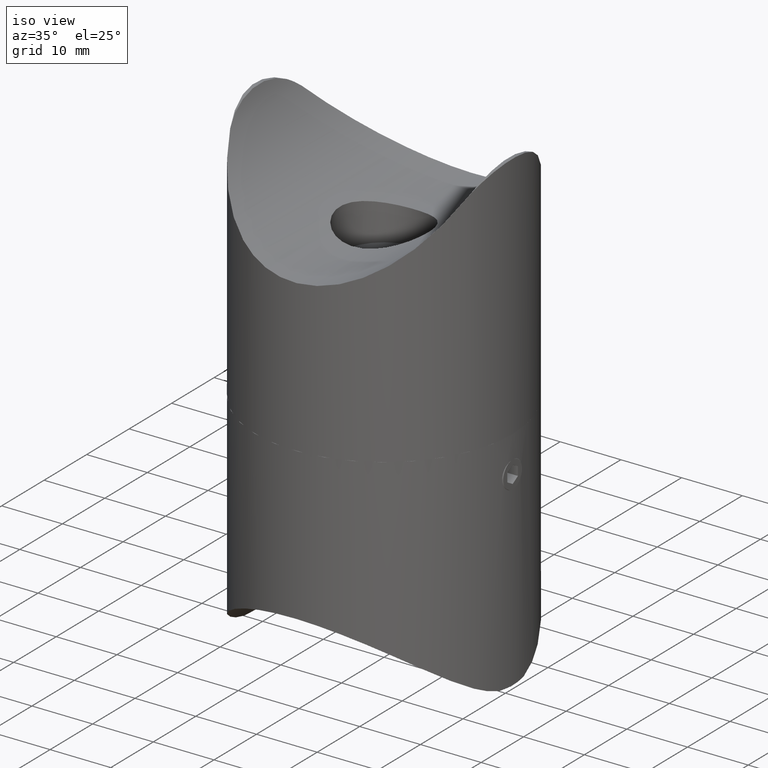
[diagram: clean part render]
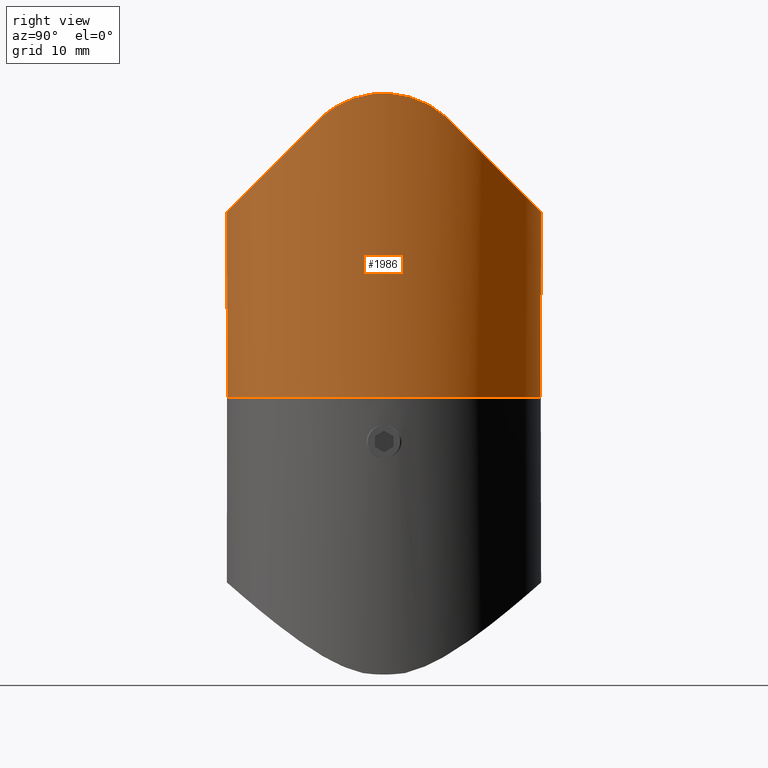
[diagram: tour spotlight — one face highlighted and labeled with its STEP entity id]
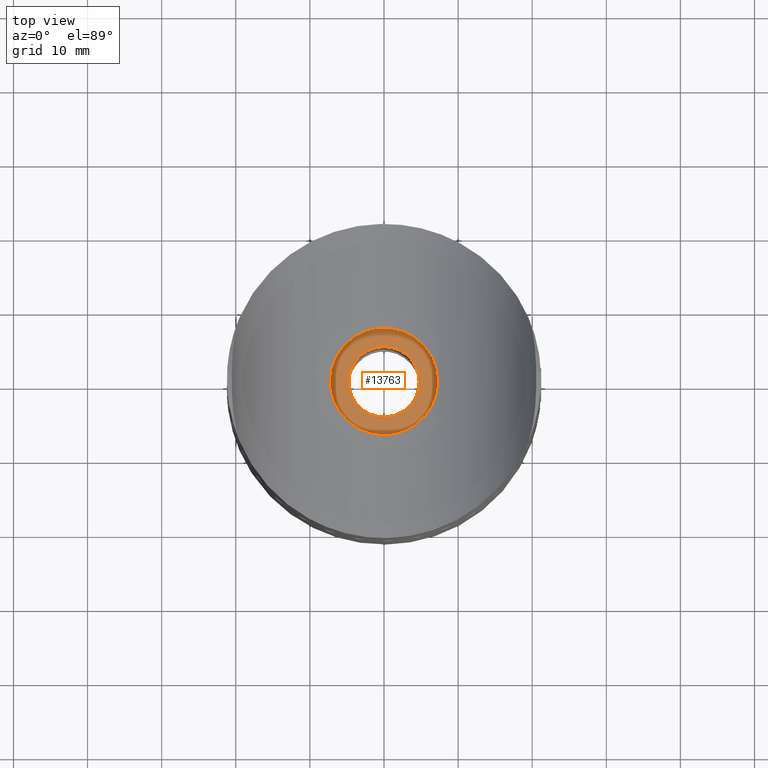
[diagram: tour spotlight — one face highlighted and labeled with its STEP entity id]
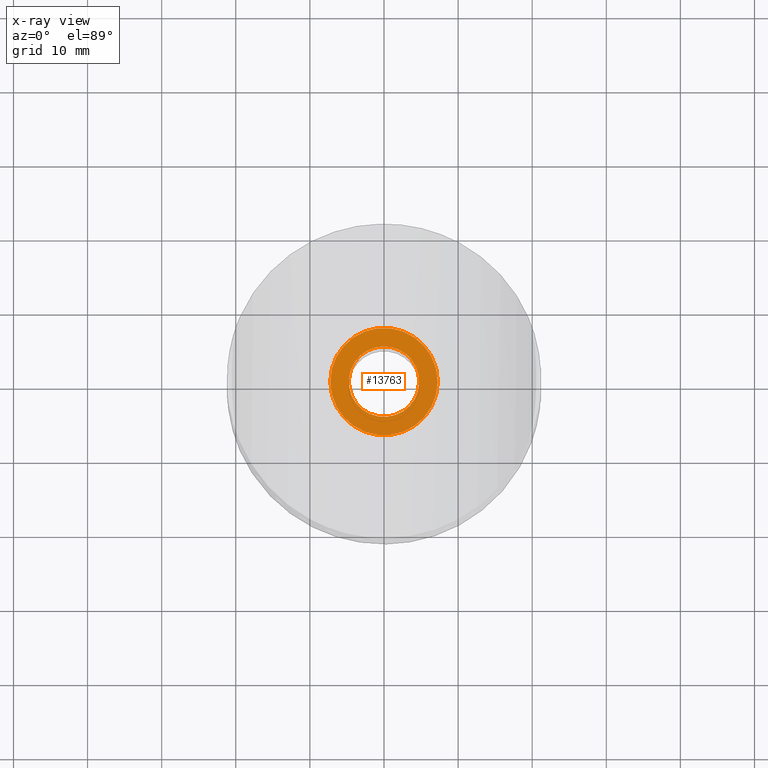
[diagram: x-ray of the same camera — body ghosted, this tour face saturated]
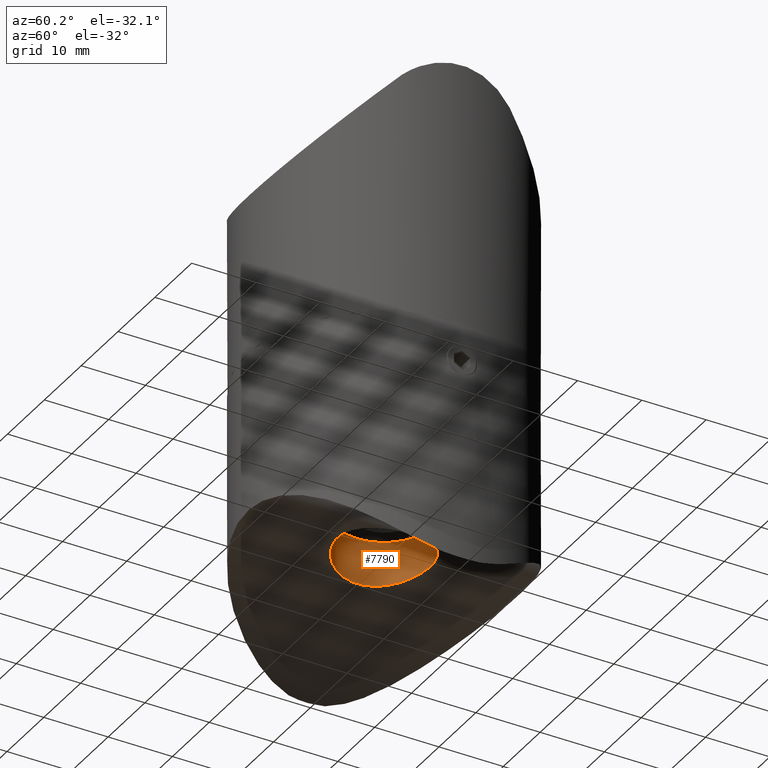
[diagram: tour spotlight — one face highlighted and labeled with its STEP entity id]
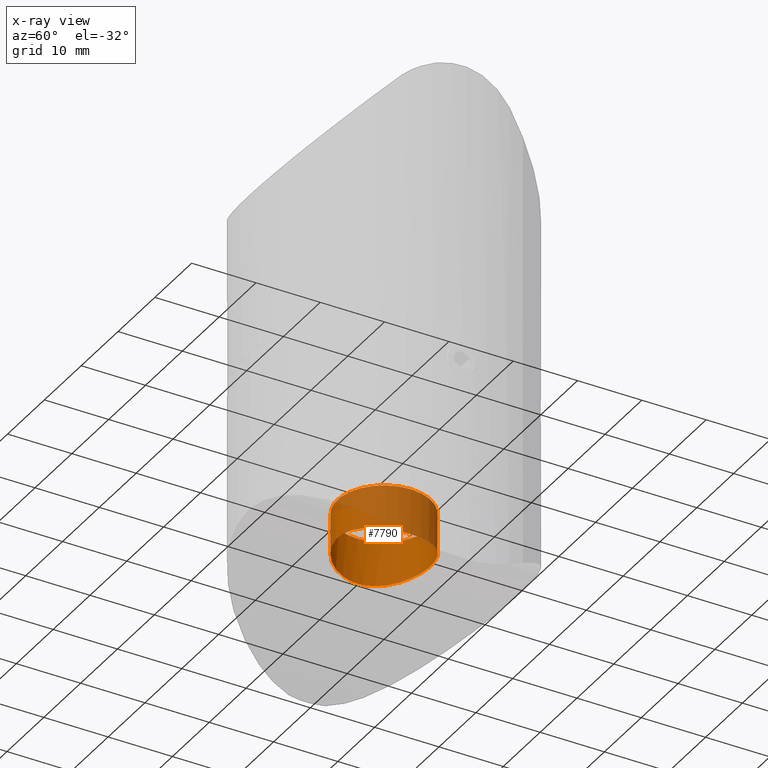
[diagram: x-ray of the same camera — body ghosted, this tour face saturated]
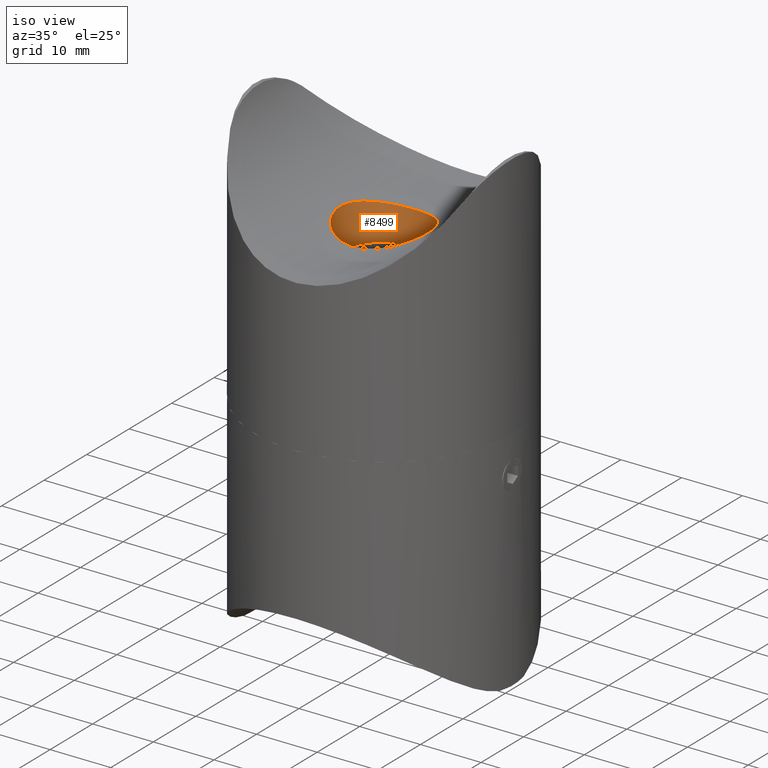
[diagram: tour spotlight — one face highlighted and labeled with its STEP entity id]
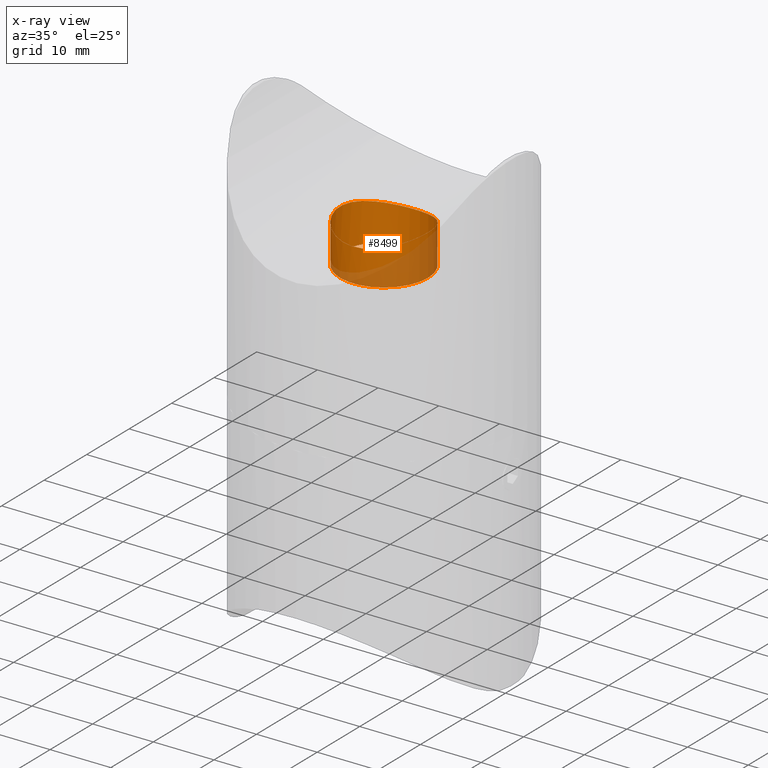
[diagram: x-ray of the same camera — body ghosted, this tour face saturated]
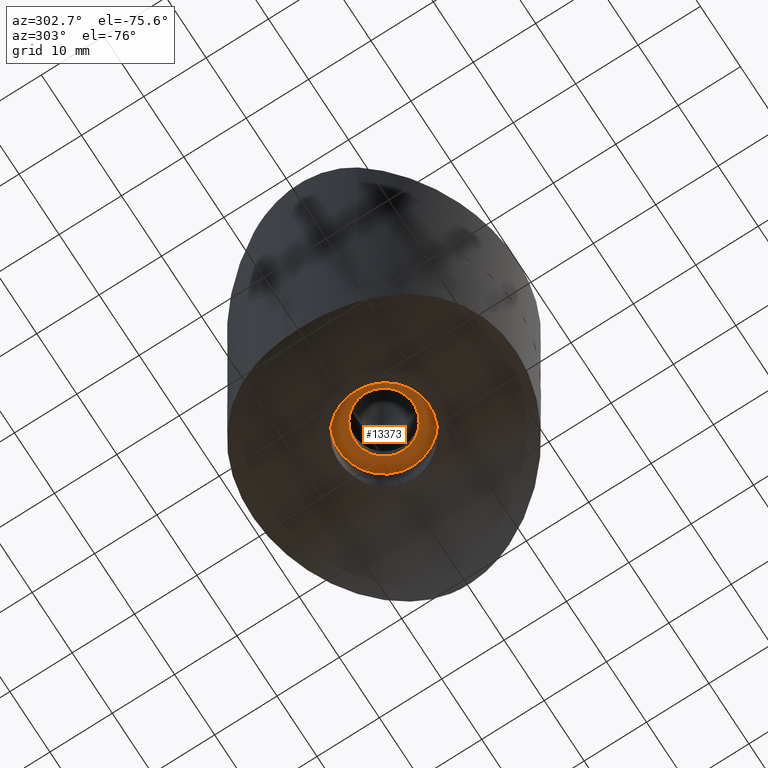
[diagram: tour spotlight — one face highlighted and labeled with its STEP entity id]
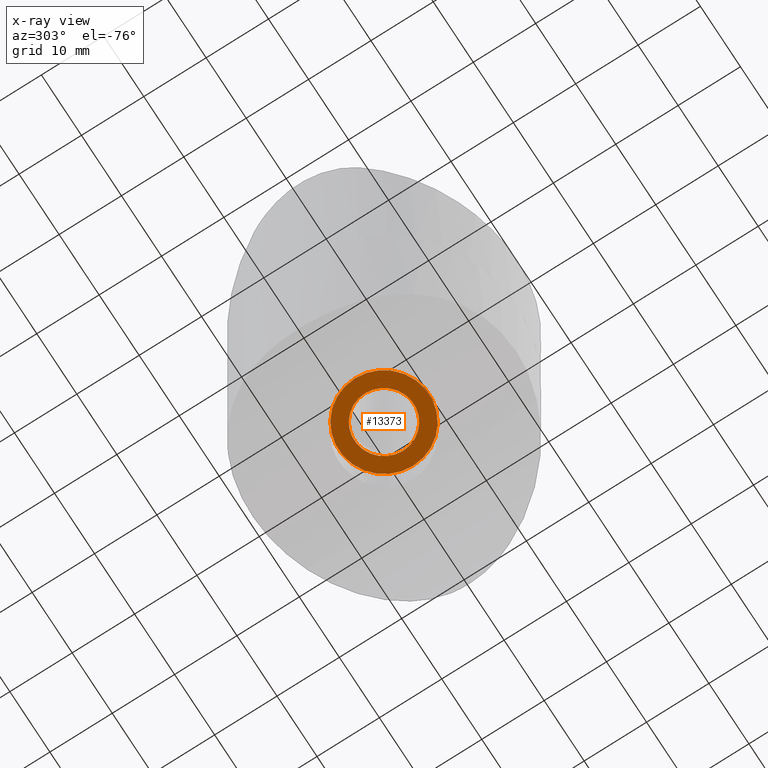
[diagram: x-ray of the same camera — body ghosted, this tour face saturated]
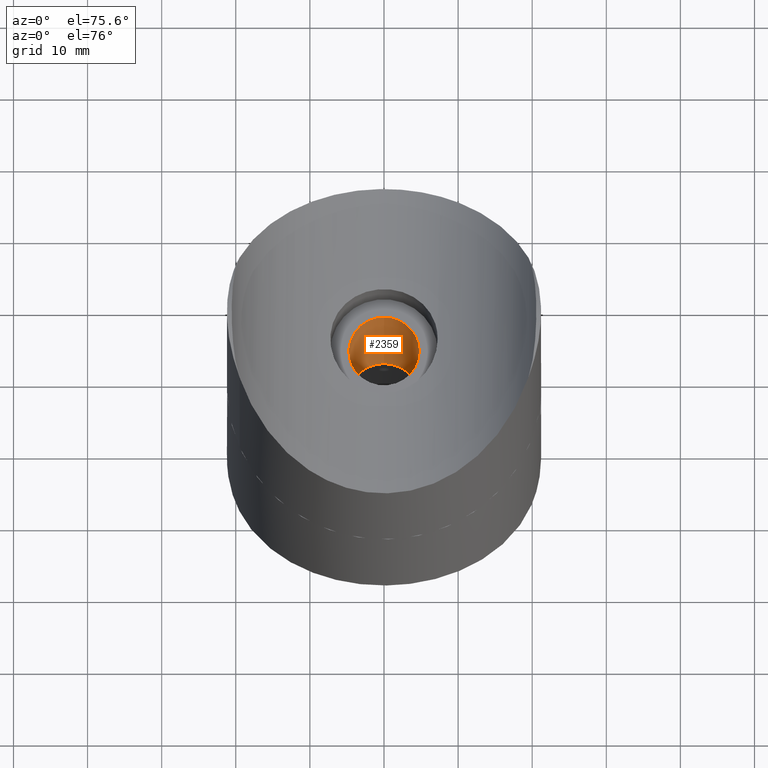
[diagram: tour spotlight — one face highlighted and labeled with its STEP entity id]
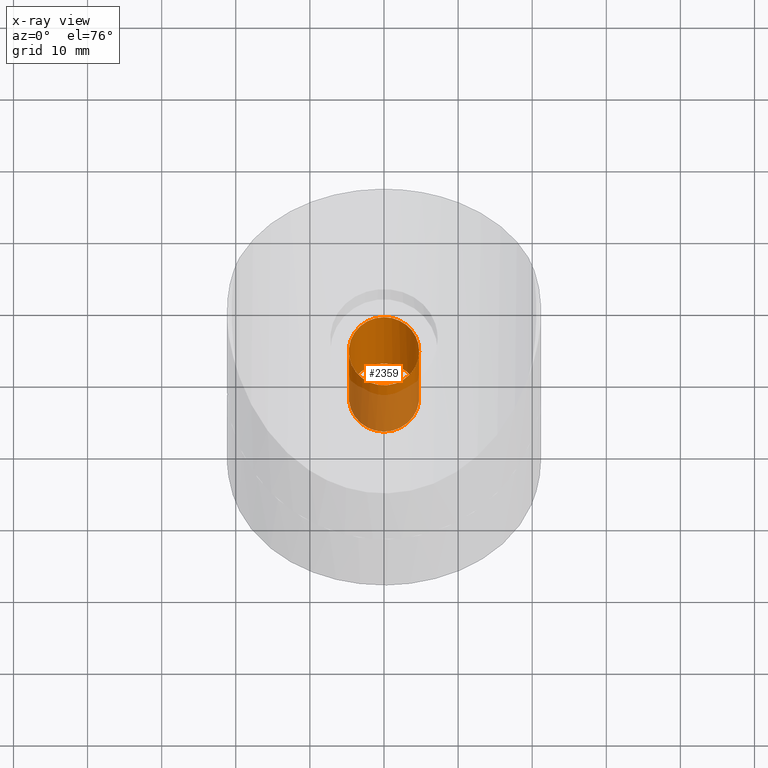
[diagram: x-ray of the same camera — body ghosted, this tour face saturated]
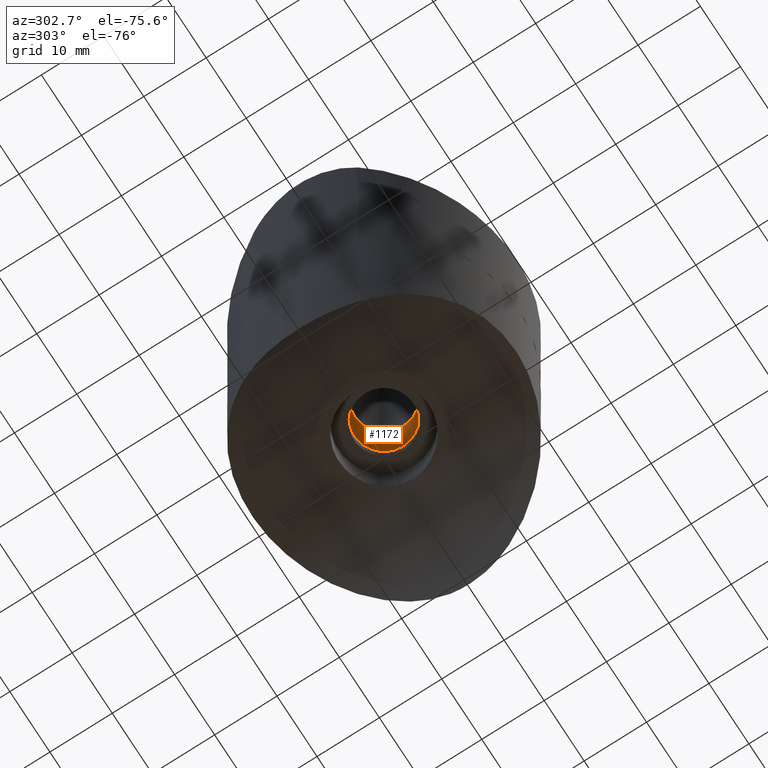
[diagram: tour spotlight — one face highlighted and labeled with its STEP entity id]
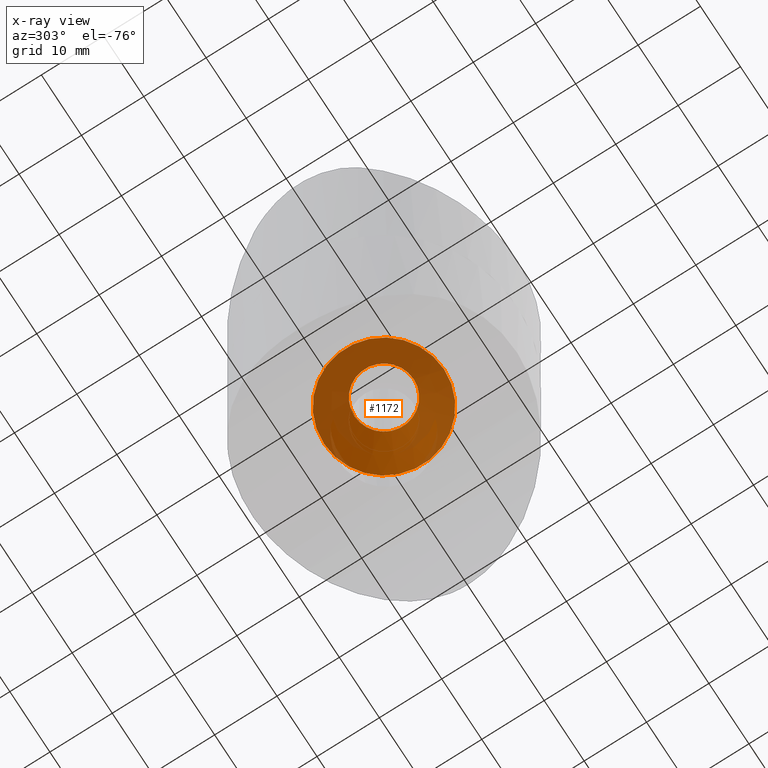
[diagram: x-ray of the same camera — body ghosted, this tour face saturated]
A machine part: a face-by-face anatomy tour. The part has 273 B-rep faces; the first image is the clean iso view, then the 7 largest visible faces are spotlighted one at a time (largest first), each with its STEP entity span.

Face 1 — right view, entity #1986. In plain terms, the highlighted cylindrical surface (bore or boss wall) has radius 21.2 mm, axis along (-0, -0, -1).
Definition (entity closure, byte-faithful):
#485 = CARTESIAN_POINT ( 'NONE',  ( -19.47698192314896559, -8.371808356939878237, 37.82819164306012993 ) ) ;
#601 = EDGE_CURVE ( 'NONE', #1841, #1841, #13040, .T. ) ;
#1078 = CARTESIAN_POINT ( 'NONE',  ( 20.25824580171663669, 6.257475844693697553, 39.34792318658800525 ) ) ;
#1261 = CARTESIAN_POINT ( 'NONE',  ( -20.26296980684998061, 6.242373562762690398, 39.35665772018679576 ) ) ;
#1590 = ORIENTED_EDGE ( 'NONE', *, *, #6616, .T. ) ;
#1731 = CARTESIAN_POINT ( 'NONE',  ( 10.88225247172379184, -28.36741540174245557, 17.83258459825755438 ) ) ;
#1775 = CARTESIAN_POINT ( 'NONE',  ( -10.88225247172378296, -28.36741540174245557, 17.83258459825755082 ) ) ;
#1841 = VERTEX_POINT ( 'NONE', #11404 ) ;
#1854 = CARTESIAN_POINT ( 'NONE',  ( 20.98085649511283535, -3.063567383151542867, 40.62902822150397242 ) ) ;
#1986 = ADVANCED_FACE ( 'NONE', ( #9784, #10677 ), #10859, .T. ) ;
#2134 = CARTESIAN_POINT ( 'NONE',  ( -19.94768736510454943, 7.210441120043809882, 38.76790732465864409 ) ) ;
#2262 = CARTESIAN_POINT ( 'NONE',  ( 21.14519650036242737, 1.572489478599862212, 40.90785891445356981 ) ) ;
#2563 = CARTESIAN_POINT ( 'NONE',  ( -10.88225247172379184, 28.36741540174245557, 17.83258459825755438 ) ) ;
#2720 = AXIS2_PLACEMENT_3D ( 'NONE', #11544, #5777, #13818 ) ;
#2875 = EDGE_CURVE ( 'NONE', #4806, #3521, #11501, .T. ) ;
#2913 = CARTESIAN_POINT ( 'NONE',  ( 21.03313149224620915, -2.682273805881013828, 40.71808630578833288 ) ) ;
#3037 = CARTESIAN_POINT ( 'NONE',  ( -21.14519650036242737, -1.572489478599858215, 40.90785891445356981 ) ) ;
#3080 = CARTESIAN_POINT ( 'NONE',  ( -21.03313149224620915, 2.682273805881017381, 40.71808630578835420 ) ) ;
#3237 = CARTESIAN_POINT ( 'NONE',  ( -20.62993089432838190, -4.896897147836369868, 40.01870311454305096 ) ) ;
#3521 = VERTEX_POINT ( 'NONE', #6885 ) ;
#3550 = CARTESIAN_POINT ( 'NONE',  ( 20.85883059505918169, -3.806700748187551220, 40.41906961996711090 ) ) ;
#3691 = DIRECTION ( 'NONE',  ( 0.000000000000000000, 0.000000000000000000, 1.000000000000000000 ) ) ;
#3766 = CARTESIAN_POINT ( 'NONE',  ( 10.88225247172378296, 28.36741540174245557, 17.83258459825755082 ) ) ;
#4254 = CARTESIAN_POINT ( 'NONE',  ( -21.18872153895586052, -0.7938121590367441804, 40.98110037893430047 ) ) ;
#4567 = CARTESIAN_POINT ( 'NONE',  ( -20.63368791525036627, 4.880912696021973751, 40.02534392906564165 ) ) ;
#4593 = CARTESIAN_POINT ( 'NONE',  ( 19.94606918786171690, 7.214182669700895723, 38.76470696993027332 ) ) ;
#4720 = CARTESIAN_POINT ( 'NONE',  ( 20.54815093033131390, -5.228546883526983713, 39.87358820406252136 ) ) ;
#4806 = VERTEX_POINT ( 'NONE', #8794 ) ;
#4862 = DIRECTION ( 'NONE',  ( 1.000000000000000000, 0.000000000000000000, 0.000000000000000000 ) ) ;
#4940 = CARTESIAN_POINT ( 'NONE',  ( 19.47698192314896559, 8.371808356939880014, 37.82819164306012993 ) ) ;
#5542 = CARTESIAN_POINT ( 'NONE',  ( 20.62993089432838190, 4.896897147836374309, 40.01870311454305096 ) ) ;
#5701 = CARTESIAN_POINT ( 'NONE',  ( 20.54286080485717036, 5.249269818508260244, 39.86414564556180551 ) ) ;
#5777 = DIRECTION ( 'NONE',  ( -0.000000000000000000, -0.000000000000000000, -1.000000000000000000 ) ) ;
#5838 = CARTESIAN_POINT ( 'NONE',  ( -20.54815093033131035, 5.228546883526985489, 39.87358820406251425 ) ) ;
#5989 = CARTESIAN_POINT ( 'NONE',  ( 19.94768736510455653, -7.210441120043815211, 38.76790732465863698 ) ) ;
#6073 = CARTESIAN_POINT ( 'NONE',  ( 0.000000000000000000, 0.000000000000000000, 0.000000000000000000 ) ) ;
#6104 = ORIENTED_EDGE ( 'NONE', *, *, #10994, .T. ) ;
#6222 = ORIENTED_EDGE ( 'NONE', *, *, #9471, .T. ) ;
#6520 = CARTESIAN_POINT ( 'NONE',  ( -20.35722247529929874, -5.928529055879547371, 39.52910763295725616 ) ) ;
#6568 = CARTESIAN_POINT ( 'NONE',  ( -19.71758130599269521, -7.812054761232769096, 38.32342268926853990 ) ) ;
#6616 = EDGE_CURVE ( 'NONE', #10349, #7474, #11326, .T. ) ;
#6885 = CARTESIAN_POINT ( 'NONE',  ( 19.47698192314896559, -8.371808356939878237, 37.82819164306012993 ) ) ;
#7206 = CARTESIAN_POINT ( 'NONE',  ( 20.36300364488492676, -5.908662431322227349, 39.53964032670331363 ) ) ;
#7474 = VERTEX_POINT ( 'NONE', #14222 ) ;
#7685 = CARTESIAN_POINT ( 'NONE',  ( -21.20039971423564396, 0.7674637649240727555, 41.00067070617026843 ) ) ;
#7885 = CARTESIAN_POINT ( 'NONE',  ( -19.94606918786171335, -7.214182669700890393, 38.76470696993026621 ) ) ;
#8195 = CARTESIAN_POINT ( 'NONE',  ( 20.26296980684998417, -6.242373562762701944, 39.35665772018680997 ) ) ;
#8460 = CARTESIAN_POINT ( 'NONE',  ( -19.47698192314896559, 8.371808356939880014, 37.82819164306012993 ) ) ;
#8692 =( BOUNDED_CURVE ( )  B_SPLINE_CURVE ( 3, ( #8460, #2563, #3766, #4940 ),
 .UNSPECIFIED., .F., .T. ) 
 B_SPLINE_CURVE_WITH_KNOTS ( ( 4, 4 ),
 ( 5.118344303942862439, 7.448026310416310025 ),
 .UNSPECIFIED. ) 
 CURVE ( )  GEOMETRIC_REPRESENTATION_ITEM ( )  RATIONAL_B_SPLINE_CURVE ( ( 1.000000000000000000, 0.5965977470735812638, 0.5965977470735812638, 1.000000000000000000 ) ) 
 REPRESENTATION_ITEM ( '' )  );
#8794 = CARTESIAN_POINT ( 'NONE',  ( 19.47698192314896559, 8.371808356939880014, 37.82819164306012993 ) ) ;
#8826 = CARTESIAN_POINT ( 'NONE',  ( -21.15805616633364750, 1.538022048479605886, 40.93001098808039728 ) ) ;
#8976 = CARTESIAN_POINT ( 'NONE',  ( -20.54286080485717747, -5.249269818508254914, 39.86414564556180551 ) ) ;
#9053 = CARTESIAN_POINT ( 'NONE',  ( 19.47698192314896559, 8.371808356939880014, 37.82819164306012993 ) ) ;
#9338 = CARTESIAN_POINT ( 'NONE',  ( 19.71777755462263571, -7.811598189503593304, 38.32382663217637742 ) ) ;
#9471 = EDGE_CURVE ( 'NONE', #7474, #4806, #8692, .T. ) ;
#9784 = FACE_OUTER_BOUND ( 'NONE', #13450, .T. ) ;
#10011 = CARTESIAN_POINT ( 'NONE',  ( -19.47698192314896559, -8.371808356939878237, 37.82819164306012993 ) ) ;
#10034 = CARTESIAN_POINT ( 'NONE',  ( -20.78902550149737749, 4.169988540539286248, 40.29808314892445509 ) ) ;
#10139 = CARTESIAN_POINT ( 'NONE',  ( -19.47698192314896559, -8.371808356939878237, 37.82819164306012993 ) ) ;
#10218 = CARTESIAN_POINT ( 'NONE',  ( 19.71758130599269521, 7.812054761232769984, 38.32342268926853990 ) ) ;
#10270 = CARTESIAN_POINT ( 'NONE',  ( 20.98729583467804716, 3.090727075730372864, 40.64028212217736069 ) ) ;
#10331 = AXIS2_PLACEMENT_3D ( 'NONE', #6073, #3691, #4862 ) ;
#10349 = VERTEX_POINT ( 'NONE', #10011 ) ;
#10677 = FACE_OUTER_BOUND ( 'NONE', #13774, .T. ) ;
#10859 = CYLINDRICAL_SURFACE ( 'NONE', #2720, 21.19999999999999929 ) ;
#10994 = EDGE_CURVE ( 'NONE', #3521, #10349, #12276, .T. ) ;
#11090 = CARTESIAN_POINT ( 'NONE',  ( -21.19979589082903715, -0.4001766555497557887, 40.99965751212284459 ) ) ;
#11142 = CARTESIAN_POINT ( 'NONE',  ( -20.98085649511282824, 3.063567383151546419, 40.62902822150397952 ) ) ;
#11257 = CARTESIAN_POINT ( 'NONE',  ( 21.19979589082904070, 0.4001766555497611177, 40.99965751212285880 ) ) ;
#11288 = CARTESIAN_POINT ( 'NONE',  ( -20.86478966171595673, -3.825591966919996256, 40.43119461943228998 ) ) ;
#11326 = B_SPLINE_CURVE_WITH_KNOTS ( 'NONE', 3,
 ( #10139, #6568, #7885, #12406, #6520, #8976, #3237, #11288, #12302, #14561, #3037, #4254, #11090, #7685, #8826, #3080, #11142, #14608, #10034, #4567, #5838, #12609, #1261, #2134, #14870, #11556 ),
 .UNSPECIFIED., .F., .F.,
 ( 4, 2, 2, 2, 2, 2, 2, 2, 2, 2, 2, 2, 4 ),
 ( 3.469446951953614189E-18, 0.002325983606198890347, 0.003488975409298335738, 0.004651967212397780695, 0.006977950818596664537, 0.008140942621696109494, 0.009303934424795552716, 0.01162991803099443916, 0.01279290983409388065, 0.01395590163719332560, 0.01511889344029276883, 0.01628188524339221205, 0.01860786884959109502 ),
 .UNSPECIFIED. ) ;
#11364 = CARTESIAN_POINT ( 'NONE',  ( 20.35722247529929518, 5.928529055879553589, 39.52910763295725616 ) ) ;
#11404 = CARTESIAN_POINT ( 'NONE',  ( 21.19999999999999929, 0.000000000000000000, 0.000000000000000000 ) ) ;
#11501 = B_SPLINE_CURVE_WITH_KNOTS ( 'NONE', 3,
 ( #9053, #10218, #4593, #1078, #11364, #5701, #5542, #12531, #10270, #13744, #2262, #12634, #11257, #13588, #14740, #2913, #1854, #3550, #11809, #14107, #4720, #7206, #8195, #5989, #9338, #13966 ),
 .UNSPECIFIED., .F., .F.,
 ( 4, 2, 2, 2, 2, 2, 2, 2, 2, 2, 2, 2, 4 ),
 ( 3.469446951953620352E-18, 0.002325983606198890347, 0.003488975409298336605, 0.004651967212397782429, 0.006977950818596668006, 0.008140942621696112963, 0.009303934424795556185, 0.01162991803099444436, 0.01279290983409388585, 0.01395590163719332907, 0.01511889344029276883, 0.01628188524339221205, 0.01860786884959109502 ),
 .UNSPECIFIED. ) ;
#11544 = CARTESIAN_POINT ( 'NONE',  ( 0.000000000000000000, 0.000000000000000000, 46.20000000000000284 ) ) ;
#11556 = CARTESIAN_POINT ( 'NONE',  ( -19.47698192314896559, 8.371808356939880014, 37.82819164306012993 ) ) ;
#11809 = CARTESIAN_POINT ( 'NONE',  ( 20.78902550149738104, -4.169988540539280031, 40.29808314892446219 ) ) ;
#12185 = CARTESIAN_POINT ( 'NONE',  ( 19.47698192314896559, -8.371808356939878237, 37.82819164306012993 ) ) ;
#12276 =( BOUNDED_CURVE ( )  B_SPLINE_CURVE ( 3, ( #12185, #1731, #1775, #485 ),
 .UNSPECIFIED., .F., .F. ) 
 B_SPLINE_CURVE_WITH_KNOTS ( ( 4, 4 ),
 ( 5.118344303942862439, 7.448026310416310025 ),
 .UNSPECIFIED. ) 
 CURVE ( )  GEOMETRIC_REPRESENTATION_ITEM ( )  RATIONAL_B_SPLINE_CURVE ( ( 1.000000000000000000, 0.5965977470735812638, 0.5965977470735812638, 1.000000000000000000 ) ) 
 REPRESENTATION_ITEM ( '' )  );
#12302 = CARTESIAN_POINT ( 'NONE',  ( -20.98729583467804716, -3.090727075730371975, 40.64028212217736069 ) ) ;
#12406 = CARTESIAN_POINT ( 'NONE',  ( -20.25824580171663314, -6.257475844693694889, 39.34792318658800525 ) ) ;
#12531 = CARTESIAN_POINT ( 'NONE',  ( 20.86478966171596383, 3.825591966920002918, 40.43119461943228998 ) ) ;
#12609 = CARTESIAN_POINT ( 'NONE',  ( -20.36300364488491255, 5.908662431322228237, 39.53964032670328521 ) ) ;
#12634 = CARTESIAN_POINT ( 'NONE',  ( 21.18872153895587118, 0.7938121590367482883, 40.98110037893431468 ) ) ;
#13040 = CIRCLE ( 'NONE', #10331, 21.19999999999999929 ) ;
#13258 = ORIENTED_EDGE ( 'NONE', *, *, #2875, .T. ) ;
#13450 = EDGE_LOOP ( 'NONE', ( #13918 ) ) ;
#13588 = CARTESIAN_POINT ( 'NONE',  ( 21.20039971423564396, -0.7674637649240684256, 41.00067070617028264 ) ) ;
#13744 = CARTESIAN_POINT ( 'NONE',  ( 21.11299195317282695, 1.956109879964809117, 40.85358546654216383 ) ) ;
#13774 = EDGE_LOOP ( 'NONE', ( #6104, #1590, #6222, #13258 ) ) ;
#13818 = DIRECTION ( 'NONE',  ( -1.000000000000000000, 0.000000000000000000, 0.000000000000000000 ) ) ;
#13918 = ORIENTED_EDGE ( 'NONE', *, *, #601, .T. ) ;
#13966 = CARTESIAN_POINT ( 'NONE',  ( 19.47698192314896559, -8.371808356939878237, 37.82819164306012993 ) ) ;
#14107 = CARTESIAN_POINT ( 'NONE',  ( 20.63368791525036627, -4.880912696021969310, 40.02534392906564875 ) ) ;
#14222 = CARTESIAN_POINT ( 'NONE',  ( -19.47698192314896559, 8.371808356939880014, 37.82819164306012993 ) ) ;
#14561 = CARTESIAN_POINT ( 'NONE',  ( -21.11299195317283406, -1.956109879964806453, 40.85358546654215672 ) ) ;
#14608 = CARTESIAN_POINT ( 'NONE',  ( -20.85883059505917814, 3.806700748187552552, 40.41906961996710379 ) ) ;
#14740 = CARTESIAN_POINT ( 'NONE',  ( 21.15805616633364394, -1.538022048479600334, 40.93001098808037597 ) ) ;
#14870 = CARTESIAN_POINT ( 'NONE',  ( -19.71777755462262505, 7.811598189503591527, 38.32382663217632768 ) ) ;

Face 2 — top view, entity #13763. An x-ray twin of the same camera follows (body ghosted, this face saturated) — the face is partly hidden behind the body. In plain terms, the highlighted planar face has unit normal (0, 0, 1).
Definition (entity closure, byte-faithful):
#92 = FACE_OUTER_BOUND ( 'NONE', #7176, .T. ) ;
#142 = ORIENTED_EDGE ( 'NONE', *, *, #13382, .T. ) ;
#253 = VERTEX_POINT ( 'NONE', #7171 ) ;
#820 = CARTESIAN_POINT ( 'NONE',  ( 0.000000000000000000, 0.000000000000000000, 19.50000000000000355 ) ) ;
#974 = FACE_BOUND ( 'NONE', #14032, .T. ) ;
#1947 = DIRECTION ( 'NONE',  ( 1.000000000000000000, 0.000000000000000000, 0.000000000000000000 ) ) ;
#1967 = DIRECTION ( 'NONE',  ( 1.000000000000000000, 0.000000000000000000, -0.000000000000000000 ) ) ;
#2029 = CARTESIAN_POINT ( 'NONE',  ( 0.000000000000000000, 0.000000000000000000, 19.50000000000000355 ) ) ;
#3554 = AXIS2_PLACEMENT_3D ( 'NONE', #6580, #14617, #1947 ) ;
#3569 = CARTESIAN_POINT ( 'NONE',  ( 7.250000000000000000, 0.000000000000000000, 19.50000000000000355 ) ) ;
#3861 = CIRCLE ( 'NONE', #9929, 7.250000000000000000 ) ;
#4447 = DIRECTION ( 'NONE',  ( 0.000000000000000000, 0.000000000000000000, 1.000000000000000000 ) ) ;
#4554 = VERTEX_POINT ( 'NONE', #3569 ) ;
#5570 = DIRECTION ( 'NONE',  ( 0.000000000000000000, 0.000000000000000000, 1.000000000000000000 ) ) ;
#6260 = EDGE_CURVE ( 'NONE', #253, #253, #14396, .T. ) ;
#6580 = CARTESIAN_POINT ( 'NONE',  ( 0.000000000000000000, 0.000000000000000000, 19.50000000000000355 ) ) ;
#7171 = CARTESIAN_POINT ( 'NONE',  ( 4.750000000000000000, 0.000000000000000000, 19.50000000000000355 ) ) ;
#7176 = EDGE_LOOP ( 'NONE', ( #142 ) ) ;
#7718 = PLANE ( 'NONE',  #8414 ) ;
#7781 = DIRECTION ( 'NONE',  ( 1.000000000000000000, 0.000000000000000000, 0.000000000000000000 ) ) ;
#8414 = AXIS2_PLACEMENT_3D ( 'NONE', #820, #4447, #1967 ) ;
#9929 = AXIS2_PLACEMENT_3D ( 'NONE', #2029, #5570, #7781 ) ;
#13072 = ORIENTED_EDGE ( 'NONE', *, *, #6260, .T. ) ;
#13382 = EDGE_CURVE ( 'NONE', #4554, #4554, #3861, .T. ) ;
#13763 = ADVANCED_FACE ( 'NONE', ( #92, #974 ), #7718, .T. ) ;
#14032 = EDGE_LOOP ( 'NONE', ( #13072 ) ) ;
#14396 = CIRCLE ( 'NONE', #3554, 4.750000000000000000 ) ;
#14617 = DIRECTION ( 'NONE',  ( -0.000000000000000000, -0.000000000000000000, -1.000000000000000000 ) ) ;

Face 3 — auxiliary view, entity #7790. An x-ray twin of the same camera follows (body ghosted, this face saturated) — the face is partly hidden behind the body. In plain terms, the highlighted cylindrical surface (bore or boss wall) has radius 7.25 mm, axis along (0, 0, -1).
Definition (entity closure, byte-faithful):
#444 = DIRECTION ( 'NONE',  ( 0.000000000000000000, 0.000000000000000000, 1.000000000000000000 ) ) ;
#720 = CARTESIAN_POINT ( 'NONE',  ( -1.887006463236361009, -7.016240821506663394, 25.06930831911330060 ) ) ;
#760 = CARTESIAN_POINT ( 'NONE',  ( 7.005132268049744759, -1.883515786305127504, 26.03818712466214436 ) ) ;
#812 = CARTESIAN_POINT ( 'NONE',  ( 7.063023397359133426, -1.653011571266923774, 26.05587597579659942 ) ) ;
#863 = CARTESIAN_POINT ( 'NONE',  ( -0.9588759266909432366, 7.190294457754371038, 25.01786750220641053 ) ) ;
#916 = CARTESIAN_POINT ( 'NONE',  ( 4.430535015015584221, -5.758457711840870630, 25.40649481286305544 ) ) ;
#1023 = CARTESIAN_POINT ( 'NONE',  ( 4.428777119038296739, 5.759859945306606832, 25.40615654448816230 ) ) ;
#1861 = CARTESIAN_POINT ( 'NONE',  ( -7.238159395298983334, -0.4782172060891010101, 26.11020484737139924 ) ) ;
#1908 = CARTESIAN_POINT ( 'NONE',  ( 3.221480690050006590, -6.512085145936918451, 25.21181015599480091 ) ) ;
#1958 = CARTESIAN_POINT ( 'NONE',  ( -6.877376070853807200, 2.342668701104146045, 25.99919327012935000 ) ) ;
#2005 = CARTESIAN_POINT ( 'NONE',  ( -4.783167365172779739, -5.453412311661145928, 25.47768585661112084 ) ) ;
#2104 = CARTESIAN_POINT ( 'NONE',  ( 1.882875519516438167, 7.005316653640307756, 25.07241677952253767 ) ) ;
#2244 = EDGE_LOOP ( 'NONE', ( #2837 ) ) ;
#2260 = CARTESIAN_POINT ( 'NONE',  ( 0.4759095739806156189, 7.250129997702256190, 24.99996097377580639 ) ) ;
#2355 = DIRECTION ( 'NONE',  ( 0.000000000000000000, 0.000000000000000000, 1.000000000000000000 ) ) ;
#2837 = ORIENTED_EDGE ( 'NONE', *, *, #5681, .F. ) ;
#2965 = CARTESIAN_POINT ( 'NONE',  ( 0.4807107271748746191, -7.249688256254142260, 25.00009358764873824 ) ) ;
#3007 = CARTESIAN_POINT ( 'NONE',  ( 7.249999999999999112, -0.4819777699687032846, 26.11394130932974278 ) ) ;
#3056 = CARTESIAN_POINT ( 'NONE',  ( -7.250203973369105270, 0.4717505720782017575, 26.11400550463296000 ) ) ;
#3100 = CARTESIAN_POINT ( 'NONE',  ( -7.249897003482066893, -0.2405618492822135246, 26.11390889385921810 ) ) ;
#3153 = CARTESIAN_POINT ( 'NONE',  ( 7.202421268336048676, -0.9553088186341807120, 26.09881600218510656 ) ) ;
#3209 = CARTESIAN_POINT ( 'NONE',  ( 5.291107627380775114, 4.962046597767260536, 25.58613754225180159 ) ) ;
#3367 = CARTESIAN_POINT ( 'NONE',  ( 7.249999999999998224, 0.4819777699686998984, 26.11394130932974278 ) ) ;
#3415 = CARTESIAN_POINT ( 'NONE',  ( 3.219168441476824238, 6.513313868482390134, 25.21147741431768807 ) ) ;
#4042 = EDGE_CURVE ( 'NONE', #6021, #6021, #7589, .T. ) ;
#4131 = CARTESIAN_POINT ( 'NONE',  ( -4.228520255933796435, -5.893855298342533189, 25.37224818271707250 ) ) ;
#4175 = CARTESIAN_POINT ( 'NONE',  ( 6.511077239207358147, -3.223923639002027830, 25.89350832831115312 ) ) ;
#4216 = ORIENTED_EDGE ( 'NONE', *, *, #4042, .F. ) ;
#4223 = CARTESIAN_POINT ( 'NONE',  ( 3.638877831533089413, -6.288723548186531787, 25.27234837304858672 ) ) ;
#4276 = CARTESIAN_POINT ( 'NONE',  ( 5.751404433098323388, -4.420405091081876847, 25.69434470690511674 ) ) ;
#4327 = CARTESIAN_POINT ( 'NONE',  ( 1.889932500870401766, -7.003379799992317523, 25.07297993355162546 ) ) ;
#4535 = CARTESIAN_POINT ( 'NONE',  ( 3.635904837538693979, 6.290488802313167760, 25.27188523307730250 ) ) ;
#4591 = CARTESIAN_POINT ( 'NONE',  ( 6.287576360483358329, 3.640402073505393687, 25.83128016843673080 ) ) ;
#5302 = CARTESIAN_POINT ( 'NONE',  ( 6.784652654092806934, -2.566576703426461048, 25.97242471081404958 ) ) ;
#5355 = CARTESIAN_POINT ( 'NONE',  ( -7.155131508516586081, -1.193129468298084417, 26.08424595322770401 ) ) ;
#5401 = CARTESIAN_POINT ( 'NONE',  ( -5.461977603441229512, -4.790947819237313610, 25.62328152599137354 ) ) ;
#5442 = CARTESIAN_POINT ( 'NONE',  ( 0.9530173313449618044, -7.202959378916134803, 25.01424629614210460 ) ) ;
#5489 = CARTESIAN_POINT ( 'NONE',  ( -0.9548036046264919419, -7.202553625920777414, 25.01436544652671046 ) ) ;
#5681 = EDGE_CURVE ( 'NONE', #12469, #12469, #7929, .T. ) ;
#5747 = EDGE_LOOP ( 'NONE', ( #4216 ) ) ;
#5892 = AXIS2_PLACEMENT_3D ( 'NONE', #7350, #444, #9641 ) ;
#6021 = VERTEX_POINT ( 'NONE', #10151 ) ;
#6172 = FACE_OUTER_BOUND ( 'NONE', #2244, .T. ) ;
#6456 = CARTESIAN_POINT ( 'NONE',  ( -7.015941670273372566, 1.889294121607443921, 26.04137131818981032 ) ) ;
#6499 = CARTESIAN_POINT ( 'NONE',  ( -6.287189625676647076, 3.640949459774311503, 25.83118226600530321 ) ) ;
#6539 = CARTESIAN_POINT ( 'NONE',  ( -4.420085787299028901, 5.751629280268361732, 25.40721230515005047 ) ) ;
#6591 = CARTESIAN_POINT ( 'NONE',  ( -1.891178497224052846, 7.015027855281248392, 25.06966207377698197 ) ) ;
#6647 = CARTESIAN_POINT ( 'NONE',  ( -4.960207737149437079, -5.292901783625873158, 25.51426149708310831 ) ) ;
#6844 = CARTESIAN_POINT ( 'NONE',  ( 7.250000000000000000, 0.000000000000000000, 18.92999999999989313 ) ) ;
#6854 = CARTESIAN_POINT ( 'NONE',  ( 5.750336783304170751, 4.421788825645392329, 25.69408307455882934 ) ) ;
#6951 = CARTESIAN_POINT ( 'NONE',  ( 0.000000000000000000, 0.000000000000000000, 18.92999999999989313 ) ) ;
#7114 = DIRECTION ( 'NONE',  ( 1.000000000000000000, 0.000000000000000000, 0.000000000000000000 ) ) ;
#7350 = CARTESIAN_POINT ( 'NONE',  ( 0.000000000000000000, 0.000000000000000000, 18.92999999999989313 ) ) ;
#7589 = B_SPLINE_CURVE_WITH_KNOTS ( 'NONE', 3,
 ( #12232, #3007, #3153, #812, #760, #12327, #5302, #4175, #7656, #11159, #4276, #13431, #8805, #12376, #916, #4223, #1908, #9865, #11204, #4327, #8944, #5442, #2965, #12274, #5489, #720, #13339, #11018, #7755, #8760, #14579, #4131, #10058, #2005, #6647, #5401, #9957, #13534, #9909, #11065, #14679, #5355, #13388, #1861, #3100, #3056, #7706, #6456, #1958, #11113, #6499, #14492, #7806, #12188, #14536, #6539, #8845, #10007, #7616, #13482, #6591, #14628, #863, #8897, #10162, #2260, #12478, #13688, #2104, #9051, #10324, #3415, #4535, #1023, #10108, #3209, #13742, #6854, #7857, #4591, #11469, #14840, #7955, #10215, #3367, #14896 ),
 .UNSPECIFIED., .T., .F.,
 ( 4, 2, 2, 2, 2, 2, 2, 2, 2, 2, 2, 2, 2, 2, 2, 2, 2, 2, 2, 2, 2, 2, 2, 2, 2, 2, 2, 2, 2, 2, 2, 2, 2, 2, 2, 2, 2, 2, 2, 2, 2, 2, 4 ),
 ( 0.000000000000000000, 0.001424720433073833068, 0.002137080649610749276, 0.002849440866147664835, 0.004274161299221496818, 0.004986521515758413244, 0.005698881732295329669, 0.007123602165369164255, 0.008548322598442998840, 0.009260682814979916133, 0.009973043031516835161, 0.01139776346459066628, 0.01282248389766449913, 0.01424720433073833371, 0.01495956454727525101, 0.01567192476381216656, 0.01638428498034908212, 0.01709664519688599768, 0.01852136562995982880, 0.01994608606303366338, 0.02137080649610749797, 0.02208316671264441353, 0.02279552692918132908, 0.02422024736225516020, 0.02564496779532899479, 0.02706968822840282590, 0.02849440866147665702, 0.02920676887801357952, 0.02991912909455049507, 0.03134384952762432619, 0.03276856996069816425, 0.03348093017723507980, 0.03419329039377199536, 0.03561801082684582648, 0.03633037104338274204, 0.03704273125991965759, 0.03846745169299348871, 0.03989217212606732677, 0.04060453234260424232, 0.04131689255914115788, 0.04274161299221498900, 0.04416633342528881317, 0.04559105385836263735 ),
 .UNSPECIFIED. ) ;
#7616 = CARTESIAN_POINT ( 'NONE',  ( -3.228525279233163126, 6.509093773792967497, 25.21264255871480486 ) ) ;
#7656 = CARTESIAN_POINT ( 'NONE',  ( 6.288279808588548292, -3.639174042621816429, 25.83147146888198264 ) ) ;
#7706 = CARTESIAN_POINT ( 'NONE',  ( -7.203772017884860546, 0.9479127137863742059, 26.09923372664590957 ) ) ;
#7755 = CARTESIAN_POINT ( 'NONE',  ( -3.217946500129026610, -6.501028593805384226, 25.21442509437558854 ) ) ;
#7790 = ADVANCED_FACE ( 'NONE', ( #6172, #10135 ), #12050, .F. ) ;
#7806 = CARTESIAN_POINT ( 'NONE',  ( -5.463935351666974860, 4.788709261913862925, 25.62373870971187628 ) ) ;
#7857 = CARTESIAN_POINT ( 'NONE',  ( 5.892937365032688390, 4.229858171171289705, 25.72961908978055945 ) ) ;
#7929 = CIRCLE ( 'NONE', #5892, 7.250000000000000000 ) ;
#7955 = CARTESIAN_POINT ( 'NONE',  ( 7.015820218399773545, 1.888619147174173118, 26.04133722469318357 ) ) ;
#8760 = CARTESIAN_POINT ( 'NONE',  ( -3.635229885871472888, -6.277233158966990523, 25.27423761599817098 ) ) ;
#8805 = CARTESIAN_POINT ( 'NONE',  ( 5.292161427922066785, -4.960920004862202859, 25.58637474294738112 ) ) ;
#8845 = CARTESIAN_POINT ( 'NONE',  ( -4.231050712837536310, 5.892028891758601894, 25.37270058855538224 ) ) ;
#8897 = CARTESIAN_POINT ( 'NONE',  ( -0.4825929110062018301, 7.237878246713409958, 25.00364694169946489 ) ) ;
#8944 = CARTESIAN_POINT ( 'NONE',  ( 1.655916322836521903, -7.062402749334220076, 25.05569510540811962 ) ) ;
#9051 = CARTESIAN_POINT ( 'NONE',  ( 2.340393982012675789, 6.866020510362850438, 25.11257522175116463 ) ) ;
#9641 = DIRECTION ( 'NONE',  ( 1.000000000000000000, 0.000000000000000000, 0.000000000000000000 ) ) ;
#9865 = CARTESIAN_POINT ( 'NONE',  ( 2.567971062528682236, -6.784076747656210493, 25.13591835332813318 ) ) ;
#9909 = CARTESIAN_POINT ( 'NONE',  ( -6.512588624488568456, -3.220621262753792458, 25.89393799316437139 ) ) ;
#9957 = CARTESIAN_POINT ( 'NONE',  ( -5.760028374301387366, -4.427944264599123159, 25.69540580167704391 ) ) ;
#10007 = CARTESIAN_POINT ( 'NONE',  ( -3.645004378345051865, 6.284713316097240821, 25.27336973469316206 ) ) ;
#10058 = CARTESIAN_POINT ( 'NONE',  ( -4.417710530253419421, -5.753453706698207881, 25.40676979395114188 ) ) ;
#10108 = CARTESIAN_POINT ( 'NONE',  ( 4.792431585243525305, 5.460403369030790266, 25.47784684677926137 ) ) ;
#10135 = FACE_OUTER_BOUND ( 'NONE', #5747, .T. ) ;
#10151 = CARTESIAN_POINT ( 'NONE',  ( 7.250000000000000000, 0.000000000000000000, 26.11394130932973923 ) ) ;
#10162 = CARTESIAN_POINT ( 'NONE',  ( -0.2409192066514788677, 7.249934597112834389, 25.00001963440625019 ) ) ;
#10215 = CARTESIAN_POINT ( 'NONE',  ( 7.202398825524178427, 0.9560683961244186291, 26.09880741137574134 ) ) ;
#10324 = CARTESIAN_POINT ( 'NONE',  ( 2.563886665923539088, 6.785641894124005091, 25.13547653139329086 ) ) ;
#11018 = CARTESIAN_POINT ( 'NONE',  ( -3.001560036107231433, -6.603793025683311946, 25.18622827745646475 ) ) ;
#11065 = CARTESIAN_POINT ( 'NONE',  ( -6.875825524705430958, -2.347176018906345085, 25.99873104965063320 ) ) ;
#11113 = CARTESIAN_POINT ( 'NONE',  ( -6.514537617548423754, 3.216706062516760500, 25.89448552507762003 ) ) ;
#11159 = CARTESIAN_POINT ( 'NONE',  ( 5.893845718678322854, -4.228589636074408631, 25.72984806632669930 ) ) ;
#11204 = CARTESIAN_POINT ( 'NONE',  ( 2.345293780030233588, -6.864311368676264458, 25.11306306487129447 ) ) ;
#11469 = CARTESIAN_POINT ( 'NONE',  ( 6.510153906180984329, 3.225617090496233796, 25.89325207806502505 ) ) ;
#12050 = CYLINDRICAL_SURFACE ( 'NONE', #13376, 7.250000000000000000 ) ;
#12188 = CARTESIAN_POINT ( 'NONE',  ( -4.962435920999253014, 5.290811488851237421, 25.51472985797474635 ) ) ;
#12232 = CARTESIAN_POINT ( 'NONE',  ( 7.249999999999999112, 2.710505431213761085E-17, 26.11394130932974278 ) ) ;
#12274 = CARTESIAN_POINT ( 'NONE',  ( -0.4712609527894480732, -7.250308664496026623, 24.99990733676323629 ) ) ;
#12327 = CARTESIAN_POINT ( 'NONE',  ( 6.866026250664987174, -2.340340431499600804, 25.99648069941237338 ) ) ;
#12376 = CARTESIAN_POINT ( 'NONE',  ( 4.793714833284061783, -5.459267129612246805, 25.47810887501587729 ) ) ;
#12469 = VERTEX_POINT ( 'NONE', #6844 ) ;
#12478 = CARTESIAN_POINT ( 'NONE',  ( 0.9484403245173245178, 7.203466903221691808, 25.01409243754132561 ) ) ;
#13339 = CARTESIAN_POINT ( 'NONE',  ( -2.340435523965494813, -6.878418529272458670, 25.10958126736843354 ) ) ;
#13376 = AXIS2_PLACEMENT_3D ( 'NONE', #6951, #2355, #7114 ) ;
#13388 = CARTESIAN_POINT ( 'NONE',  ( -7.190937394407021621, -0.9539719690186894141, 26.09542276474014244 ) ) ;
#13431 = CARTESIAN_POINT ( 'NONE',  ( 5.450528033875965406, -4.786478692552370795, 25.62260825477066817 ) ) ;
#13482 = CARTESIAN_POINT ( 'NONE',  ( -2.344622196554749127, 6.877094153063540993, 25.10996664923441912 ) ) ;
#13534 = CARTESIAN_POINT ( 'NONE',  ( -6.284815106235165594, -3.644957662798243625, 25.83054428248377477 ) ) ;
#13688 = CARTESIAN_POINT ( 'NONE',  ( 1.649311365242447147, 7.063923530108980664, 25.05524869917372044 ) ) ;
#13742 = CARTESIAN_POINT ( 'NONE',  ( 5.449496473532436269, 4.787648454615373694, 25.62236943252517207 ) ) ;
#14492 = CARTESIAN_POINT ( 'NONE',  ( -5.762065438270885132, 4.425366452954047070, 25.69590407230399975 ) ) ;
#14536 = CARTESIAN_POINT ( 'NONE',  ( -4.785424623598840910, 5.451431822611109368, 25.47814250926525403 ) ) ;
#14579 = CARTESIAN_POINT ( 'NONE',  ( -3.837279822448173228, -6.155745072440454990, 25.30598296000911773 ) ) ;
#14628 = CARTESIAN_POINT ( 'NONE',  ( -1.194082458193165497, 7.154916845269341685, 25.02841527240783748 ) ) ;
#14679 = CARTESIAN_POINT ( 'NONE',  ( -7.014186066537644315, -1.895139349267407569, 26.04083817129237488 ) ) ;
#14840 = CARTESIAN_POINT ( 'NONE',  ( 6.874400171282862182, 2.351453121312657046, 25.99830351633694292 ) ) ;
#14896 = CARTESIAN_POINT ( 'NONE',  ( 7.249999999999999112, 2.710505431213761085E-17, 26.11394130932974278 ) ) ;

Face 4 — iso view, entity #8499. An x-ray twin of the same camera follows (body ghosted, this face saturated) — the face is partly hidden behind the body. In plain terms, the highlighted cylindrical surface (bore or boss wall) has radius 7.25 mm, axis along (0, 0, 1).
Definition (entity closure, byte-faithful):
#69 = ORIENTED_EDGE ( 'NONE', *, *, #13382, .F. ) ;
#112 = CARTESIAN_POINT ( 'NONE',  ( 6.783481717695231339, -2.569661129754951645, 26.11434282070458224 ) ) ;
#160 = CARTESIAN_POINT ( 'NONE',  ( -1.889748769253165817, -7.015536201140636585, 25.07921617399669856 ) ) ;
#175 = FACE_OUTER_BOUND ( 'NONE', #828, .T. ) ;
#207 = CARTESIAN_POINT ( 'NONE',  ( 7.250000000000000888, 4.336808689942017736E-16, 26.27821544138177146 ) ) ;
#359 = CARTESIAN_POINT ( 'NONE',  ( -7.191716234747704384, 0.9480330731187178728, 26.25708554441513343 ) ) ;
#410 = CARTESIAN_POINT ( 'NONE',  ( -0.4800756467866370003, 7.238085387647868352, 25.00408349533767094 ) ) ;
#458 = CARTESIAN_POINT ( 'NONE',  ( -6.284210845800435763, -3.645984821129527820, 25.95096090228477692 ) ) ;
#508 = CARTESIAN_POINT ( 'NONE',  ( 7.250000000000000000, 0.4829326223636202231, 26.27821544138177146 ) ) ;
#560 = CARTESIAN_POINT ( 'NONE',  ( -4.784453945466627722, 5.452244044724640304, 25.54609599899160699 ) ) ;
#828 = EDGE_LOOP ( 'NONE', ( #8472 ) ) ;
#1270 = CARTESIAN_POINT ( 'NONE',  ( -0.9566369692030692873, -7.202342973613696131, 25.01643312506579875 ) ) ;
#1407 = CARTESIAN_POINT ( 'NONE',  ( 6.864947048405166896, -2.343528998161403365, 26.14213506629842243 ) ) ;
#1501 = CARTESIAN_POINT ( 'NONE',  ( -2.343731365980564973, -6.877354188263144152, 25.12524757484252547 ) ) ;
#1554 = CARTESIAN_POINT ( 'NONE',  ( -5.760815841621074185, 4.426872302757085542, 25.79588944834129549 ) ) ;
#1603 = CARTESIAN_POINT ( 'NONE',  ( -7.190882583206957612, -0.9543925950206314512, 26.25678463686065101 ) ) ;
#1704 = CARTESIAN_POINT ( 'NONE',  ( -3.640238106544555929, 6.274323524026140575, 25.31380208191953685 ) ) ;
#1907 = AXIS2_PLACEMENT_3D ( 'NONE', #2289, #5780, #12505 ) ;
#2029 = CARTESIAN_POINT ( 'NONE',  ( 0.000000000000000000, 0.000000000000000000, 19.50000000000000355 ) ) ;
#2289 = CARTESIAN_POINT ( 'NONE',  ( 0.000000000000000000, 0.000000000000000000, 19.50000000000000355 ) ) ;
#2516 = CARTESIAN_POINT ( 'NONE',  ( 6.286913508811759144, -3.641491956531571095, 25.95179247060378458 ) ) ;
#2658 = CARTESIAN_POINT ( 'NONE',  ( -7.261670843123232189, -0.002871798025565951758, 26.28247452916107108 ) ) ;
#2707 = CARTESIAN_POINT ( 'NONE',  ( -7.015049260418604327, 1.892516147631740031, 26.19402445453779293 ) ) ;
#2747 = CARTESIAN_POINT ( 'NONE',  ( 6.509851379537833438, 3.226429652034603635, 26.02330857311110535 ) ) ;
#2800 = CARTESIAN_POINT ( 'NONE',  ( -7.013546906630639732, -1.897859625115785320, 26.19349642912580478 ) ) ;
#2854 = CYLINDRICAL_SURFACE ( 'NONE', #1907, 7.250000000000000000 ) ;
#3569 = CARTESIAN_POINT ( 'NONE',  ( 7.250000000000000000, 0.000000000000000000, 19.50000000000000355 ) ) ;
#3664 = CARTESIAN_POINT ( 'NONE',  ( 5.892557090182336310, -4.230376132583586468, 25.83491791462317266 ) ) ;
#3761 = CARTESIAN_POINT ( 'NONE',  ( -0.9587532348326602838, 7.190350821776163137, 25.02033660952204386 ) ) ;
#3807 = CARTESIAN_POINT ( 'NONE',  ( -6.512538062397737804, 3.220837523552804615, 26.02418295756668698 ) ) ;
#3826 = VERTEX_POINT ( 'NONE', #12783 ) ;
#3861 = CIRCLE ( 'NONE', #9929, 7.250000000000000000 ) ;
#3862 = CARTESIAN_POINT ( 'NONE',  ( 1.654782290350953478, 7.062676068814879748, 25.06337429442421438 ) ) ;
#3908 = CARTESIAN_POINT ( 'NONE',  ( -6.285011176621773110, 3.644561984070174177, 25.95121334313776629 ) ) ;
#3962 = CARTESIAN_POINT ( 'NONE',  ( -7.155043788601264332, -1.193796978232354755, 26.24385170633055964 ) ) ;
#4554 = VERTEX_POINT ( 'NONE', #3569 ) ;
#4684 = CARTESIAN_POINT ( 'NONE',  ( 2.348359331223845992, -6.863274511579636084, 25.12922162904524370 ) ) ;
#4789 = CARTESIAN_POINT ( 'NONE',  ( 5.450020823086105359, -4.787026358093296352, 25.71191835642643042 ) ) ;
#4936 = CARTESIAN_POINT ( 'NONE',  ( -6.511739008375247550, -3.222246078574277917, 26.02392867496321571 ) ) ;
#4988 = CARTESIAN_POINT ( 'NONE',  ( -6.876303559639469043, 2.345931738775585362, 26.14524508502755751 ) ) ;
#5040 = CARTESIAN_POINT ( 'NONE',  ( 2.345654572570459173, 6.864208478661655732, 25.12891732731176830 ) ) ;
#5087 = CARTESIAN_POINT ( 'NONE',  ( 7.004554471377877789, 1.885653695091801252, 26.19046125019305293 ) ) ;
#5138 = CARTESIAN_POINT ( 'NONE',  ( 0.4777985065261786124, 7.249997686576094225, 25.00000079114732543 ) ) ;
#5570 = DIRECTION ( 'NONE',  ( 0.000000000000000000, 0.000000000000000000, 1.000000000000000000 ) ) ;
#5780 = DIRECTION ( 'NONE',  ( -0.000000000000000000, -0.000000000000000000, 1.000000000000000000 ) ) ;
#5845 = CARTESIAN_POINT ( 'NONE',  ( 1.892431338738990831, -7.002716058644915975, 25.08339051043943968 ) ) ;
#5900 = CARTESIAN_POINT ( 'NONE',  ( 0.9548202249930327623, -7.202739017739377303, 25.01630039204184897 ) ) ;
#6050 = CARTESIAN_POINT ( 'NONE',  ( 3.224516823743702076, -6.510582053894638399, 25.24205241274554368 ) ) ;
#6101 = CARTESIAN_POINT ( 'NONE',  ( -4.961887728149400267, -5.291291510677460508, 25.58813029866553634 ) ) ;
#6145 = CARTESIAN_POINT ( 'NONE',  ( -3.007011386368376282, 6.601309398131062878, 25.21316529528078831 ) ) ;
#6195 = CARTESIAN_POINT ( 'NONE',  ( 3.636215122921611975, 6.276662310834707270, 25.31309908041850676 ) ) ;
#6239 = CARTESIAN_POINT ( 'NONE',  ( 4.794854175872543145, 5.458268951572305738, 25.54651072145666291 ) ) ;
#6286 = CARTESIAN_POINT ( 'NONE',  ( 3.841002185440882233, 6.153497826531594050, 25.34989155617825674 ) ) ;
#7061 = CARTESIAN_POINT ( 'NONE',  ( 1.658086648949340436, -7.061898216450463117, 25.06363438643857933 ) ) ;
#7165 = CARTESIAN_POINT ( 'NONE',  ( 4.794506645124587685, -5.458495940767763344, 25.54644006431659875 ) ) ;
#7264 = CARTESIAN_POINT ( 'NONE',  ( -7.238519723795990402, 0.4726323275835445648, 26.27402570532306569 ) ) ;
#7312 = CARTESIAN_POINT ( 'NONE',  ( 1.889166000319857597, 7.003606587722266852, 25.08309510850801516 ) ) ;
#7363 = CARTESIAN_POINT ( 'NONE',  ( 5.763426133025922660, 4.423481646274624701, 25.79662915280593083 ) ) ;
#7410 = CARTESIAN_POINT ( 'NONE',  ( 7.202198424912304553, 0.9571122672483782789, 26.26063926573250740 ) ) ;
#7456 = CARTESIAN_POINT ( 'NONE',  ( -4.420518731307494065, 5.751258890511367738, 25.46515579548953312 ) ) ;
#7781 = DIRECTION ( 'NONE',  ( 1.000000000000000000, 0.000000000000000000, 0.000000000000000000 ) ) ;
#7911 = EDGE_LOOP ( 'NONE', ( #69 ) ) ;
#8157 = CARTESIAN_POINT ( 'NONE',  ( -0.4722111775666738565, -7.250316275388796861, 24.99989183980574836 ) ) ;
#8307 = CARTESIAN_POINT ( 'NONE',  ( 7.062438076636139428, -1.655554104716792096, 26.21089259011971961 ) ) ;
#8402 = CARTESIAN_POINT ( 'NONE',  ( -1.893306789193654582, 7.014520785390482516, 25.07955394206430455 ) ) ;
#8455 = CARTESIAN_POINT ( 'NONE',  ( -2.346359400707022314, 6.876387900135069842, 25.12556071525185075 ) ) ;
#8464 = FACE_OUTER_BOUND ( 'NONE', #7911, .T. ) ;
#8472 = ORIENTED_EDGE ( 'NONE', *, *, #11679, .F. ) ;
#8499 = ADVANCED_FACE ( 'NONE', ( #8464, #175 ), #2854, .F. ) ;
#8504 = CARTESIAN_POINT ( 'NONE',  ( 6.287238633193505954, 3.640728091337462669, 25.95190742098767700 ) ) ;
#8551 = CARTESIAN_POINT ( 'NONE',  ( 7.250000000000000888, 4.336808689942017736E-16, 26.27821544138177146 ) ) ;
#8596 = CARTESIAN_POINT ( 'NONE',  ( -5.461870639133845629, -4.790913465329501797, 25.71278499240158055 ) ) ;
#9455 = CARTESIAN_POINT ( 'NONE',  ( 5.292002883686151016, -4.961068277643231994, 25.67041370422165514 ) ) ;
#9502 = CARTESIAN_POINT ( 'NONE',  ( 6.509725557862076961, -3.226624134545732492, 26.02326916184721739 ) ) ;
#9558 = CARTESIAN_POINT ( 'NONE',  ( -4.419892896670888582, -5.751778146353815124, 25.46501574993814287 ) ) ;
#9604 = CARTESIAN_POINT ( 'NONE',  ( 2.568855173014323423, 6.783761352755690588, 25.15506023593372475 ) ) ;
#9654 = CARTESIAN_POINT ( 'NONE',  ( 3.005515933869999490, 6.601917067209928547, 25.21297113585742622 ) ) ;
#9708 = CARTESIAN_POINT ( 'NONE',  ( -4.785265091308676944, -5.451572531739593330, 25.54627725870567900 ) ) ;
#9754 = CARTESIAN_POINT ( 'NONE',  ( -3.226555368670444235, -6.510024408526108530, 25.24224232055189532 ) ) ;
#9929 = AXIS2_PLACEMENT_3D ( 'NONE', #2029, #5570, #7781 ) ;
#10567 = CARTESIAN_POINT ( 'NONE',  ( 7.202236549575339097, -0.9570018828714323966, 26.26065258830764293 ) ) ;
#10658 = CARTESIAN_POINT ( 'NONE',  ( -0.2388465963188745045, 7.250001156584477968, 24.99999960446994152 ) ) ;
#10713 = CARTESIAN_POINT ( 'NONE',  ( -7.156177727786750431, 1.187067269414618709, 26.24425862712032398 ) ) ;
#10755 = CARTESIAN_POINT ( 'NONE',  ( -4.960688375816871165, 5.292462506426915958, 25.58783515313074375 ) ) ;
#10806 = CARTESIAN_POINT ( 'NONE',  ( 6.783783114446718443, 2.568883994451139241, 26.11444431597576710 ) ) ;
#10850 = CARTESIAN_POINT ( 'NONE',  ( -6.874786492142588301, -2.350090507094773962, 26.14472863026726301 ) ) ;
#11256 = B_SPLINE_CURVE_WITH_KNOTS ( 'NONE', 3,
 ( #207, #11620, #10567, #8307, #11715, #1407, #112, #9502, #2516, #3664, #12874, #4789, #9455, #7165, #11769, #12924, #6050, #14072, #4684, #5845, #7061, #5900, #13884, #8157, #1270, #160, #1501, #9754, #13070, #13171, #9558, #9708, #6101, #8596, #11873, #458, #4936, #10850, #2800, #3962, #1603, #11819, #2658, #7264, #359, #10713, #2707, #4988, #3807, #3908, #1554, #13124, #10755, #560, #7456, #13020, #14120, #1704, #12013, #6145, #8455, #8402, #12974, #3761, #410, #10658, #5138, #14167, #3862, #7312, #5040, #9604, #9654, #11920, #6195, #6286, #14317, #6239, #14218, #7363, #8504, #2747, #10806, #11967, #5087, #14264, #7410, #508, #8551 ),
 .UNSPECIFIED., .T., .F.,
 ( 4, 2, 2, 2, 2, 2, 2, 2, 2, 2, 2, 2, 2, 2, 2, 2, 2, 2, 2, 2, 2, 1, 2, 2, 2, 2, 2, 2, 2, 2, 2, 2, 2, 2, 2, 2, 2, 2, 2, 2, 2, 2, 2, 2, 4 ),
 ( 0.000000000000000000, 0.001427308038129306532, 0.002140962057193959798, 0.002854616076258613064, 0.004281924114387921330, 0.004995578133452572428, 0.005709232152517225260, 0.007136540190646527455, 0.008563848228775828783, 0.009277502247840480748, 0.009991156266905130978, 0.01141846430503443144, 0.01284577234316373710, 0.01427308038129303583, 0.01570038841942233976, 0.01641404243848698999, 0.01712769645755164022, 0.01855500449568094068, 0.01998231253381023767, 0.02140962057193953813, 0.02212327459100418836, 0.02283692861006883512, 0.02355058262913348535, 0.02426423664819812864, 0.02569154468632742910, 0.02711885272445672262, 0.02854616076258602309, 0.02925981478165067332, 0.02997346880071532355, 0.03068712281977997031, 0.03140077683884461707, 0.03282808487697392447, 0.03354173889603856429, 0.03425539291510321799, 0.03568270095323251151, 0.03639635497229715827, 0.03711000899136181197, 0.03782366301042645179, 0.03853731702949110549, 0.03996462506762039901, 0.04139193310574969947, 0.04281924114387899993, 0.04353289516294364669, 0.04424654918200830039, 0.04567385722013758698 ),
 .UNSPECIFIED. ) ;
#11620 = CARTESIAN_POINT ( 'NONE',  ( 7.250000000000000888, -0.4829326223636261628, 26.27821544138177146 ) ) ;
#11679 = EDGE_CURVE ( 'NONE', #3826, #3826, #11256, .T. ) ;
#11715 = CARTESIAN_POINT ( 'NONE',  ( 7.004391776076587028, -1.886298489068188644, 26.19040381408828466 ) ) ;
#11769 = CARTESIAN_POINT ( 'NONE',  ( 4.431842194841499882, -5.757450224349423884, 25.46449216879341293 ) ) ;
#11819 = CARTESIAN_POINT ( 'NONE',  ( -7.238136233160389565, -0.4785803622761156673, 26.27388614418867618 ) ) ;
#11873 = CARTESIAN_POINT ( 'NONE',  ( -5.759433065516850192, -4.428706587053825139, 25.79549507831404398 ) ) ;
#11920 = CARTESIAN_POINT ( 'NONE',  ( 3.218975471921121212, 6.500518986633828433, 25.24474081869308151 ) ) ;
#11967 = CARTESIAN_POINT ( 'NONE',  ( 6.865358533641771288, 2.342290632023552366, 26.14227638720989688 ) ) ;
#12013 = CARTESIAN_POINT ( 'NONE',  ( -3.223449022790387364, 6.498295588379971122, 25.24543072876374339 ) ) ;
#12505 = DIRECTION ( 'NONE',  ( 1.000000000000000000, 0.000000000000000000, 0.000000000000000000 ) ) ;
#12783 = CARTESIAN_POINT ( 'NONE',  ( 7.250000000000000000, 0.000000000000000000, 26.27821544138177146 ) ) ;
#12874 = CARTESIAN_POINT ( 'NONE',  ( 5.750198254161105638, -4.421941696019373147, 25.79413230358358078 ) ) ;
#12924 = CARTESIAN_POINT ( 'NONE',  ( 3.640337174190668712, -6.287877510260853064, 25.31099678021441335 ) ) ;
#12974 = CARTESIAN_POINT ( 'NONE',  ( -1.194776294910109504, 7.154817448180724959, 25.03240748984039499 ) ) ;
#13020 = CARTESIAN_POINT ( 'NONE',  ( -4.232005378712566213, 5.891331145596399921, 25.42574635267014216 ) ) ;
#13070 = CARTESIAN_POINT ( 'NONE',  ( -3.644503179383112190, -6.285018690129448693, 25.31181856569206445 ) ) ;
#13124 = CARTESIAN_POINT ( 'NONE',  ( -5.462926514089700980, 4.789915247397692255, 25.71304050749441927 ) ) ;
#13171 = CARTESIAN_POINT ( 'NONE',  ( -4.230815641621740397, -5.892201612857570936, 25.42550046882274373 ) ) ;
#13382 = EDGE_CURVE ( 'NONE', #4554, #4554, #3861, .T. ) ;
#13884 = CARTESIAN_POINT ( 'NONE',  ( 0.4818734902393386199, -7.249680505290641896, 25.00010926114104493 ) ) ;
#14072 = CARTESIAN_POINT ( 'NONE',  ( 2.571139155122229347, -6.782876624395626663, 25.15534480208394896 ) ) ;
#14120 = CARTESIAN_POINT ( 'NONE',  ( -3.841864781931650707, 6.152863332618361270, 25.35007052466595923 ) ) ;
#14167 = CARTESIAN_POINT ( 'NONE',  ( 0.9512028090831824434, 7.203228716476409943, 25.01613312446809090 ) ) ;
#14218 = CARTESIAN_POINT ( 'NONE',  ( 5.459349115452878820, 4.793624281395492126, 25.71213156078966122 ) ) ;
#14264 = CARTESIAN_POINT ( 'NONE',  ( 7.062527813327395876, 1.655145732846094120, 26.21092440739839446 ) ) ;
#14317 = CARTESIAN_POINT ( 'NONE',  ( 4.432367805953222550, 5.756904445230272671, 25.46463419026553154 ) ) ;

Face 5 — auxiliary view, entity #13373. An x-ray twin of the same camera follows (body ghosted, this face saturated) — the face is partly hidden behind the body. In plain terms, the highlighted planar face has unit normal (0, 0, -1).
Definition (entity closure, byte-faithful):
#444 = DIRECTION ( 'NONE',  ( 0.000000000000000000, 0.000000000000000000, 1.000000000000000000 ) ) ;
#459 = CARTESIAN_POINT ( 'NONE',  ( 0.000000000000000000, 0.000000000000000000, 18.92999999999989313 ) ) ;
#509 = DIRECTION ( 'NONE',  ( -0.000000000000000000, -0.000000000000000000, -1.000000000000000000 ) ) ;
#541 = AXIS2_PLACEMENT_3D ( 'NONE', #459, #509, #5088 ) ;
#786 = DIRECTION ( 'NONE',  ( 0.000000000000000000, 0.000000000000000000, 1.000000000000000000 ) ) ;
#2101 = EDGE_LOOP ( 'NONE', ( #8412 ) ) ;
#2787 = FACE_OUTER_BOUND ( 'NONE', #2101, .T. ) ;
#3275 = VERTEX_POINT ( 'NONE', #5582 ) ;
#3564 = ORIENTED_EDGE ( 'NONE', *, *, #5310, .T. ) ;
#5088 = DIRECTION ( 'NONE',  ( 1.000000000000000000, 0.000000000000000000, 0.000000000000000000 ) ) ;
#5310 = EDGE_CURVE ( 'NONE', #3275, #3275, #12425, .T. ) ;
#5377 = PLANE ( 'NONE',  #9466 ) ;
#5582 = CARTESIAN_POINT ( 'NONE',  ( 4.750000000000000000, 0.000000000000000000, 18.92999999999989313 ) ) ;
#5681 = EDGE_CURVE ( 'NONE', #12469, #12469, #7929, .T. ) ;
#5892 = AXIS2_PLACEMENT_3D ( 'NONE', #7350, #444, #9641 ) ;
#6844 = CARTESIAN_POINT ( 'NONE',  ( 7.250000000000000000, 0.000000000000000000, 18.92999999999989313 ) ) ;
#7350 = CARTESIAN_POINT ( 'NONE',  ( 0.000000000000000000, 0.000000000000000000, 18.92999999999989313 ) ) ;
#7929 = CIRCLE ( 'NONE', #5892, 7.250000000000000000 ) ;
#7964 = EDGE_LOOP ( 'NONE', ( #3564 ) ) ;
#8412 = ORIENTED_EDGE ( 'NONE', *, *, #5681, .T. ) ;
#9466 = AXIS2_PLACEMENT_3D ( 'NONE', #13456, #786, #13410 ) ;
#9641 = DIRECTION ( 'NONE',  ( 1.000000000000000000, 0.000000000000000000, 0.000000000000000000 ) ) ;
#12425 = CIRCLE ( 'NONE', #541, 4.750000000000000000 ) ;
#12469 = VERTEX_POINT ( 'NONE', #6844 ) ;
#12873 = FACE_BOUND ( 'NONE', #7964, .T. ) ;
#13373 = ADVANCED_FACE ( 'NONE', ( #2787, #12873 ), #5377, .T. ) ;
#13410 = DIRECTION ( 'NONE',  ( 1.000000000000000000, 0.000000000000000000, 0.000000000000000000 ) ) ;
#13456 = CARTESIAN_POINT ( 'NONE',  ( 0.000000000000000000, 0.000000000000000000, 18.92999999999989313 ) ) ;

Face 6 — auxiliary view, entity #2359. An x-ray twin of the same camera follows (body ghosted, this face saturated) — the face is partly hidden behind the body. In plain terms, the highlighted cylindrical surface (bore or boss wall) has radius 4.75 mm, axis along (-0, -0, -1).
Definition (entity closure, byte-faithful):
#253 = VERTEX_POINT ( 'NONE', #7171 ) ;
#915 = CIRCLE ( 'NONE', #9289, 4.750000000000000000 ) ;
#1320 = DIRECTION ( 'NONE',  ( -0.000000000000000000, 4.123985650018866956E-18, -1.000000000000000000 ) ) ;
#1335 = FACE_OUTER_BOUND ( 'NONE', #13413, .T. ) ;
#1947 = DIRECTION ( 'NONE',  ( 1.000000000000000000, 0.000000000000000000, 0.000000000000000000 ) ) ;
#2359 = ADVANCED_FACE ( 'NONE', ( #1335, #13546 ), #14089, .F. ) ;
#2464 = DIRECTION ( 'NONE',  ( 0.000000000000000000, 1.000000000000000000, 0.000000000000000000 ) ) ;
#3554 = AXIS2_PLACEMENT_3D ( 'NONE', #6580, #14617, #1947 ) ;
#4178 = VERTEX_POINT ( 'NONE', #9041 ) ;
#5160 = DIRECTION ( 'NONE',  ( -1.000000000000000000, 0.000000000000000000, 0.000000000000000000 ) ) ;
#5286 = EDGE_CURVE ( 'NONE', #4178, #4178, #915, .T. ) ;
#6260 = EDGE_CURVE ( 'NONE', #253, #253, #14396, .T. ) ;
#6580 = CARTESIAN_POINT ( 'NONE',  ( 0.000000000000000000, 0.000000000000000000, 19.50000000000000355 ) ) ;
#6803 = EDGE_LOOP ( 'NONE', ( #14556 ) ) ;
#7171 = CARTESIAN_POINT ( 'NONE',  ( 4.750000000000000000, 0.000000000000000000, 19.50000000000000355 ) ) ;
#9041 = CARTESIAN_POINT ( 'NONE',  ( 0.000000000000000000, 4.750000000000000000, -5.624999999999942268 ) ) ;
#9289 = AXIS2_PLACEMENT_3D ( 'NONE', #9503, #1320, #2464 ) ;
#9380 = AXIS2_PLACEMENT_3D ( 'NONE', #10921, #12039, #5160 ) ;
#9503 = CARTESIAN_POINT ( 'NONE',  ( 0.000000000000000000, 2.319741928135590187E-17, -5.624999999999942268 ) ) ;
#10921 = CARTESIAN_POINT ( 'NONE',  ( 0.000000000000000000, 0.000000000000000000, 46.20000000000000284 ) ) ;
#12039 = DIRECTION ( 'NONE',  ( -0.000000000000000000, -0.000000000000000000, -1.000000000000000000 ) ) ;
#13413 = EDGE_LOOP ( 'NONE', ( #13451 ) ) ;
#13451 = ORIENTED_EDGE ( 'NONE', *, *, #6260, .F. ) ;
#13546 = FACE_OUTER_BOUND ( 'NONE', #6803, .T. ) ;
#14089 = CYLINDRICAL_SURFACE ( 'NONE', #9380, 4.750000000000000000 ) ;
#14396 = CIRCLE ( 'NONE', #3554, 4.750000000000000000 ) ;
#14556 = ORIENTED_EDGE ( 'NONE', *, *, #5286, .T. ) ;
#14617 = DIRECTION ( 'NONE',  ( -0.000000000000000000, -0.000000000000000000, -1.000000000000000000 ) ) ;

Face 7 — auxiliary view, entity #1172. An x-ray twin of the same camera follows (body ghosted, this face saturated) — the face is partly hidden behind the body. In plain terms, the highlighted conical surface has half-angle 45 deg.
Definition (entity closure, byte-faithful):
#438 = FACE_OUTER_BOUND ( 'NONE', #5166, .T. ) ;
#915 = CIRCLE ( 'NONE', #9289, 4.750000000000000000 ) ;
#1172 = ADVANCED_FACE ( 'NONE', ( #438, #11393 ), #6203, .F. ) ;
#1262 = DIRECTION ( 'NONE',  ( 0.000000000000000000, 1.000000000000000000, 0.000000000000000000 ) ) ;
#1317 = ORIENTED_EDGE ( 'NONE', *, *, #5286, .F. ) ;
#1320 = DIRECTION ( 'NONE',  ( -0.000000000000000000, 4.123985650018866956E-18, -1.000000000000000000 ) ) ;
#1664 = ORIENTED_EDGE ( 'NONE', *, *, #8101, .T. ) ;
#2464 = DIRECTION ( 'NONE',  ( 0.000000000000000000, 1.000000000000000000, 0.000000000000000000 ) ) ;
#3273 = DIRECTION ( 'NONE',  ( 0.000000000000000000, 1.000000000000000000, 0.000000000000000000 ) ) ;
#3458 = AXIS2_PLACEMENT_3D ( 'NONE', #12340, #6708, #3273 ) ;
#4178 = VERTEX_POINT ( 'NONE', #9041 ) ;
#4754 = VERTEX_POINT ( 'NONE', #10573 ) ;
#4998 = EDGE_LOOP ( 'NONE', ( #1317 ) ) ;
#5166 = EDGE_LOOP ( 'NONE', ( #1664 ) ) ;
#5286 = EDGE_CURVE ( 'NONE', #4178, #4178, #915, .T. ) ;
#5840 = DIRECTION ( 'NONE',  ( -0.000000000000000000, 4.123985650018866956E-18, -1.000000000000000000 ) ) ;
#6203 = CONICAL_SURFACE ( 'NONE', #13403, 4.750000000000000000, 0.7853981633974431720 ) ;
#6708 = DIRECTION ( 'NONE',  ( -0.000000000000000000, 4.123985650018866956E-18, -1.000000000000000000 ) ) ;
#7003 = CARTESIAN_POINT ( 'NONE',  ( 0.000000000000000000, 2.319741928135590187E-17, -5.624999999999942268 ) ) ;
#8101 = EDGE_CURVE ( 'NONE', #4754, #4754, #13131, .T. ) ;
#9041 = CARTESIAN_POINT ( 'NONE',  ( 0.000000000000000000, 4.750000000000000000, -5.624999999999942268 ) ) ;
#9289 = AXIS2_PLACEMENT_3D ( 'NONE', #9503, #1320, #2464 ) ;
#9503 = CARTESIAN_POINT ( 'NONE',  ( 0.000000000000000000, 2.319741928135590187E-17, -5.624999999999942268 ) ) ;
#10573 = CARTESIAN_POINT ( 'NONE',  ( 0.000000000000000000, 9.625000000000000000, -10.49999999999999467 ) ) ;
#11393 = FACE_BOUND ( 'NONE', #4998, .T. ) ;
#12340 = CARTESIAN_POINT ( 'NONE',  ( 0.000000000000000000, 4.330184932519807915E-17, -10.49999999999999467 ) ) ;
#13131 = CIRCLE ( 'NONE', #3458, 9.625000000000000000 ) ;
#13403 = AXIS2_PLACEMENT_3D ( 'NONE', #7003, #5840, #1262 ) ;